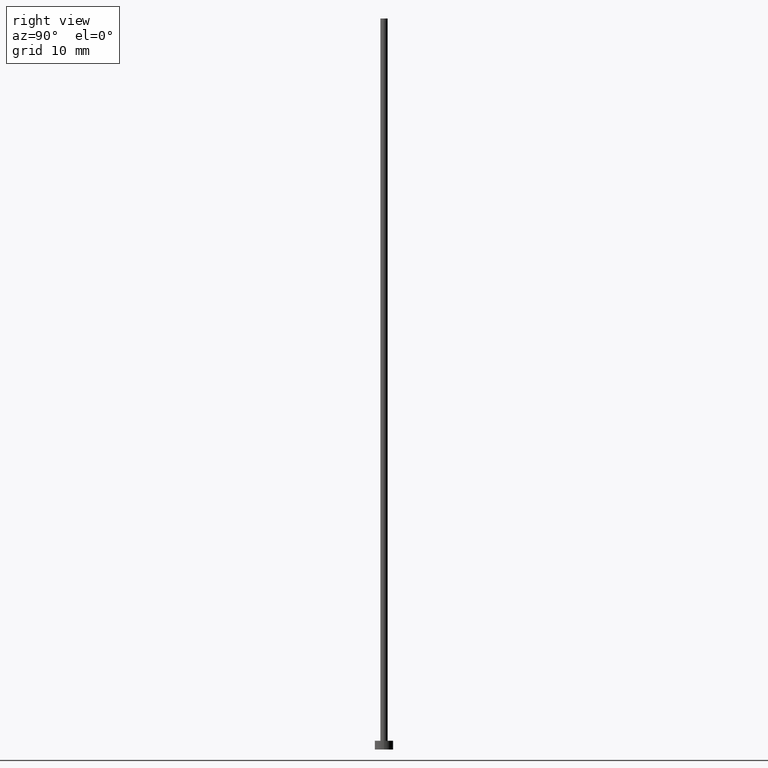
[diagram: clean part render]
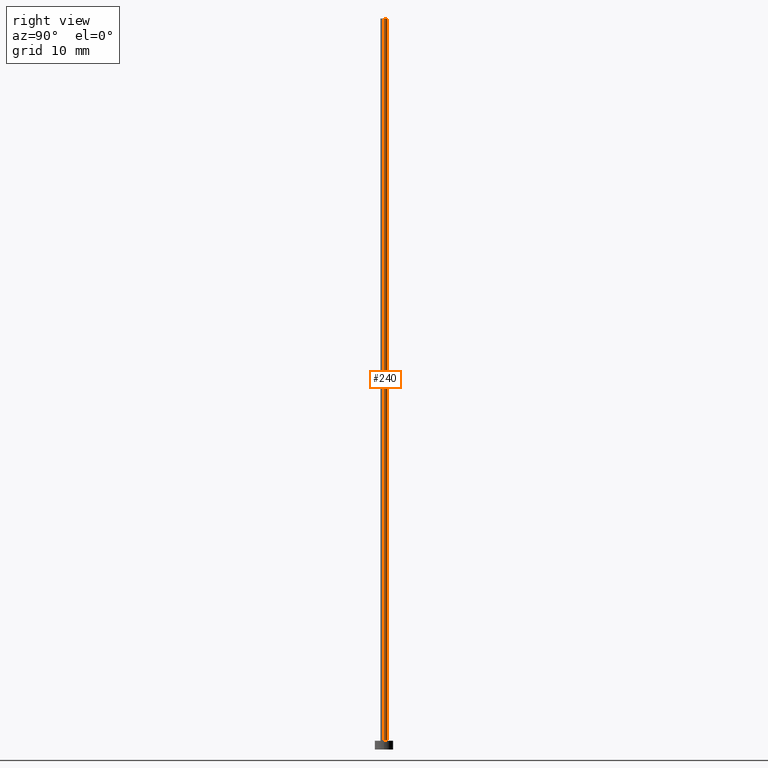
[diagram: same view with one face highlighted and labeled with its STEP entity id]
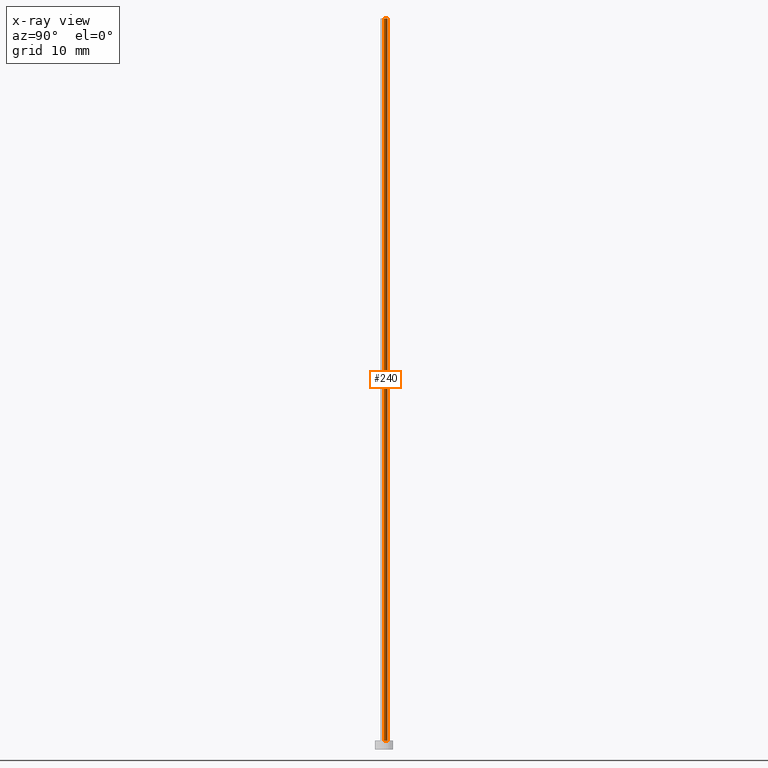
[diagram: x-ray of the same camera — body ghosted, the highlighted face saturated]
A machine part, right view. The second image highlights one B-rep face of the part: STEP entity #240.
The next image is the same camera in x-ray: the body ghosted, the highlighted face saturated — about 0% of this face is hidden behind the body in this view.
In plain terms, the highlighted cylindrical surface (edge-blend (fillet) strip) has radius 0.5 mm, axis along (-0, -0, -1).
Its self-contained STEP definition (entity closure, byte-faithful):
#2 = DIRECTION ( 'NONE',  ( -1.000000000000000000, 0.000000000000000000, 0.000000000000000000 ) ) ;
#16 = LINE ( 'NONE', #35, #36 ) ;
#25 = ORIENTED_EDGE ( 'NONE', *, *, #145, .F. ) ;
#28 = VERTEX_POINT ( 'NONE', #62 ) ;
#35 = CARTESIAN_POINT ( 'NONE',  ( -0.5000000000000000000, 0.000000000000000000, 100.0000000000000000 ) ) ;
#36 = VECTOR ( 'NONE', #113, 1000.000000000000000 ) ;
#39 = DIRECTION ( 'NONE',  ( -0.000000000000000000, -0.000000000000000000, -1.000000000000000000 ) ) ;
#54 = CIRCLE ( 'NONE', #219, 0.5000000000000000000 ) ;
#57 = DIRECTION ( 'NONE',  ( 0.000000000000000000, 0.000000000000000000, 1.000000000000000000 ) ) ;
#62 = CARTESIAN_POINT ( 'NONE',  ( -0.5000000000000000000, 0.000000000000000000, 1.199999999999999956 ) ) ;
#67 = CARTESIAN_POINT ( 'NONE',  ( 0.000000000000000000, 0.000000000000000000, 100.0000000000000000 ) ) ;
#86 = ORIENTED_EDGE ( 'NONE', *, *, #186, .T. ) ;
#92 = VERTEX_POINT ( 'NONE', #118 ) ;
#94 = LINE ( 'NONE', #212, #195 ) ;
#103 = DIRECTION ( 'NONE',  ( -0.000000000000000000, -0.000000000000000000, -1.000000000000000000 ) ) ;
#113 = DIRECTION ( 'NONE',  ( -0.000000000000000000, -0.000000000000000000, -1.000000000000000000 ) ) ;
#118 = CARTESIAN_POINT ( 'NONE',  ( 0.5000000000000000000, 6.123233995736766036E-17, 1.199999999999999956 ) ) ;
#134 = CYLINDRICAL_SURFACE ( 'NONE', #220, 0.5000000000000000000 ) ;
#136 = DIRECTION ( 'NONE',  ( 0.000000000000000000, 0.000000000000000000, 1.000000000000000000 ) ) ;
#139 = CARTESIAN_POINT ( 'NONE',  ( -0.5000000000000000000, 0.000000000000000000, 100.0000000000000000 ) ) ;
#145 = EDGE_CURVE ( 'NONE', #152, #182, #198, .T. ) ;
#151 = EDGE_CURVE ( 'NONE', #182, #28, #16, .T. ) ;
#152 = VERTEX_POINT ( 'NONE', #249 ) ;
#153 = ORIENTED_EDGE ( 'NONE', *, *, #173, .T. ) ;
#156 = DIRECTION ( 'NONE',  ( 1.000000000000000000, 0.000000000000000000, 0.000000000000000000 ) ) ;
#164 = AXIS2_PLACEMENT_3D ( 'NONE', #170, #57, #156 ) ;
#166 = EDGE_LOOP ( 'NONE', ( #25, #86, #153, #242 ) ) ;
#170 = CARTESIAN_POINT ( 'NONE',  ( 0.000000000000000000, 0.000000000000000000, 100.0000000000000000 ) ) ;
#173 = EDGE_CURVE ( 'NONE', #92, #28, #54, .T. ) ;
#182 = VERTEX_POINT ( 'NONE', #139 ) ;
#186 = EDGE_CURVE ( 'NONE', #152, #92, #94, .T. ) ;
#195 = VECTOR ( 'NONE', #39, 1000.000000000000000 ) ;
#198 = CIRCLE ( 'NONE', #164, 0.5000000000000000000 ) ;
#207 = CARTESIAN_POINT ( 'NONE',  ( 0.000000000000000000, 0.000000000000000000, 1.199999999999999956 ) ) ;
#210 = DIRECTION ( 'NONE',  ( 1.000000000000000000, 0.000000000000000000, 0.000000000000000000 ) ) ;
#212 = CARTESIAN_POINT ( 'NONE',  ( 0.5000000000000000000, 6.123233995736766036E-17, 100.0000000000000000 ) ) ;
#219 = AXIS2_PLACEMENT_3D ( 'NONE', #207, #136, #210 ) ;
#220 = AXIS2_PLACEMENT_3D ( 'NONE', #67, #103, #2 ) ;
#240 = ADVANCED_FACE ( 'NONE', ( #255 ), #134, .T. ) ;
#242 = ORIENTED_EDGE ( 'NONE', *, *, #151, .F. ) ;
#249 = CARTESIAN_POINT ( 'NONE',  ( 0.5000000000000000000, 6.123233995736766036E-17, 100.0000000000000000 ) ) ;
#255 = FACE_OUTER_BOUND ( 'NONE', #166, .T. ) ;